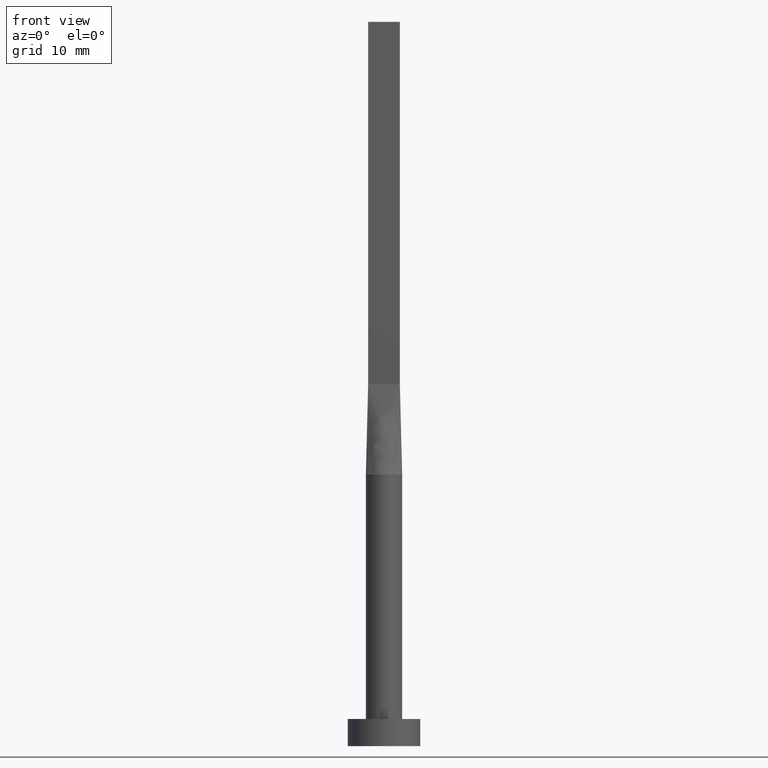
[diagram: clean part render]
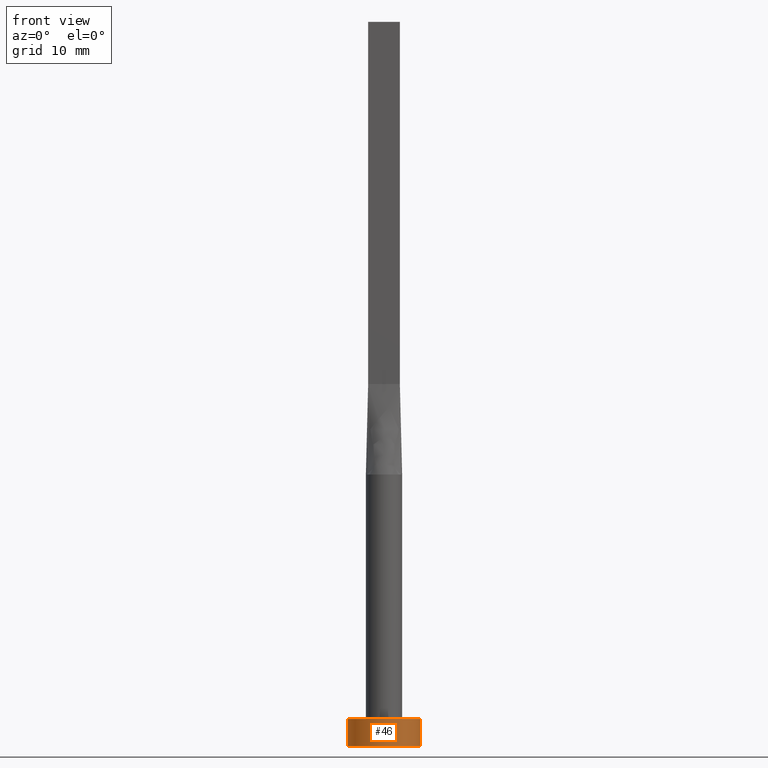
[diagram: same view with one face highlighted and labeled with its STEP entity id]
A machine part, front view. The second image highlights one B-rep face of the part: STEP entity #46.
In plain terms, the highlighted cylindrical surface (edge-blend (fillet) strip) has radius 4 mm, axis along (-0, -0, -1).
Its self-contained STEP definition (entity closure, byte-faithful):
#8 = CARTESIAN_POINT ( 'NONE',  ( 0.000000000000000000, 0.000000000000000000, 0.000000000000000000 ) ) ;
#20 = CARTESIAN_POINT ( 'NONE',  ( 4.000000000000000000, 4.898587196589412829E-16, 0.000000000000000000 ) ) ;
#29 = CARTESIAN_POINT ( 'NONE',  ( -4.000000000000000000, 0.000000000000000000, 3.000000000000000000 ) ) ;
#31 = AXIS2_PLACEMENT_3D ( 'NONE', #106, #284, #152 ) ;
#46 = ADVANCED_FACE ( 'NONE', ( #395 ), #228, .T. ) ;
#101 = VERTEX_POINT ( 'NONE', #29 ) ;
#106 = CARTESIAN_POINT ( 'NONE',  ( 0.000000000000000000, 0.000000000000000000, 3.000000000000000000 ) ) ;
#122 = CARTESIAN_POINT ( 'NONE',  ( -4.000000000000000000, 0.000000000000000000, 0.000000000000000000 ) ) ;
#123 = EDGE_CURVE ( 'NONE', #354, #252, #192, .T. ) ;
#132 = EDGE_CURVE ( 'NONE', #101, #354, #502, .T. ) ;
#142 = AXIS2_PLACEMENT_3D ( 'NONE', #580, #178, #297 ) ;
#152 = DIRECTION ( 'NONE',  ( 1.000000000000000000, 0.000000000000000000, 0.000000000000000000 ) ) ;
#171 = CARTESIAN_POINT ( 'NONE',  ( 4.000000000000000000, 4.898587196589412829E-16, 3.000000000000000000 ) ) ;
#176 = ORIENTED_EDGE ( 'NONE', *, *, #132, .T. ) ;
#178 = DIRECTION ( 'NONE',  ( -0.000000000000000000, -0.000000000000000000, -1.000000000000000000 ) ) ;
#184 = EDGE_LOOP ( 'NONE', ( #489, #522, #176, #482 ) ) ;
#192 = CIRCLE ( 'NONE', #341, 4.000000000000000000 ) ;
#219 = EDGE_CURVE ( 'NONE', #101, #387, #282, .T. ) ;
#228 = CYLINDRICAL_SURFACE ( 'NONE', #142, 4.000000000000000000 ) ;
#252 = VERTEX_POINT ( 'NONE', #20 ) ;
#282 = CIRCLE ( 'NONE', #31, 4.000000000000000000 ) ;
#284 = DIRECTION ( 'NONE',  ( 0.000000000000000000, 0.000000000000000000, 1.000000000000000000 ) ) ;
#296 = CARTESIAN_POINT ( 'NONE',  ( 4.000000000000000000, 4.898587196589412829E-16, 3.000000000000000000 ) ) ;
#297 = DIRECTION ( 'NONE',  ( -1.000000000000000000, 0.000000000000000000, 0.000000000000000000 ) ) ;
#315 = CARTESIAN_POINT ( 'NONE',  ( -4.000000000000000000, 0.000000000000000000, 3.000000000000000000 ) ) ;
#321 = DIRECTION ( 'NONE',  ( -0.000000000000000000, -0.000000000000000000, -1.000000000000000000 ) ) ;
#341 = AXIS2_PLACEMENT_3D ( 'NONE', #8, #544, #507 ) ;
#348 = EDGE_CURVE ( 'NONE', #387, #252, #390, .T. ) ;
#354 = VERTEX_POINT ( 'NONE', #122 ) ;
#387 = VERTEX_POINT ( 'NONE', #171 ) ;
#390 = LINE ( 'NONE', #296, #513 ) ;
#395 = FACE_OUTER_BOUND ( 'NONE', #184, .T. ) ;
#482 = ORIENTED_EDGE ( 'NONE', *, *, #123, .T. ) ;
#489 = ORIENTED_EDGE ( 'NONE', *, *, #348, .F. ) ;
#490 = DIRECTION ( 'NONE',  ( -0.000000000000000000, -0.000000000000000000, -1.000000000000000000 ) ) ;
#502 = LINE ( 'NONE', #315, #568 ) ;
#507 = DIRECTION ( 'NONE',  ( 1.000000000000000000, 0.000000000000000000, 0.000000000000000000 ) ) ;
#513 = VECTOR ( 'NONE', #490, 1000.000000000000000 ) ;
#522 = ORIENTED_EDGE ( 'NONE', *, *, #219, .F. ) ;
#544 = DIRECTION ( 'NONE',  ( 0.000000000000000000, 0.000000000000000000, 1.000000000000000000 ) ) ;
#568 = VECTOR ( 'NONE', #321, 1000.000000000000000 ) ;
#580 = CARTESIAN_POINT ( 'NONE',  ( 0.000000000000000000, 0.000000000000000000, 3.000000000000000000 ) ) ;